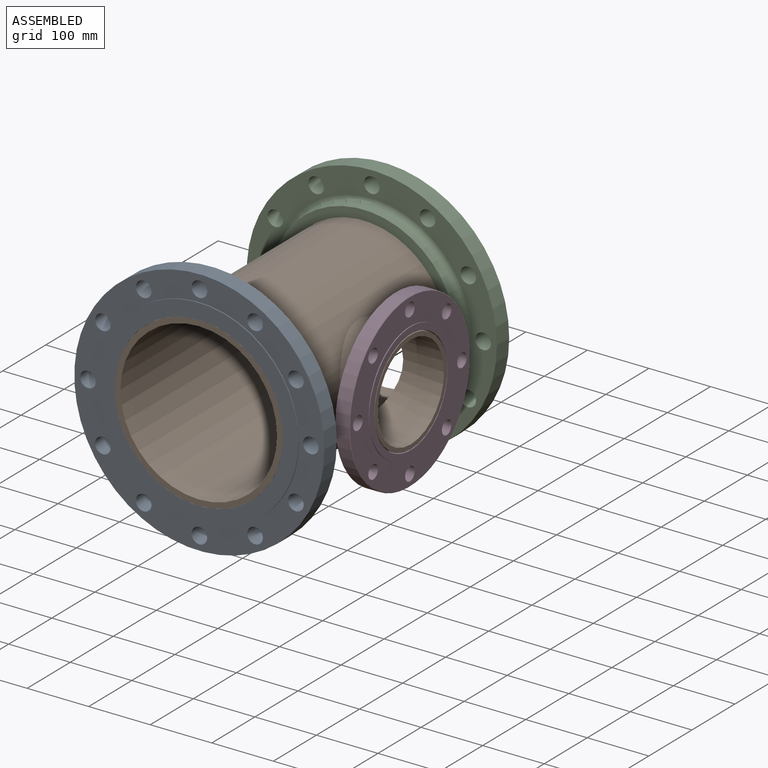
[diagram: assembled view]
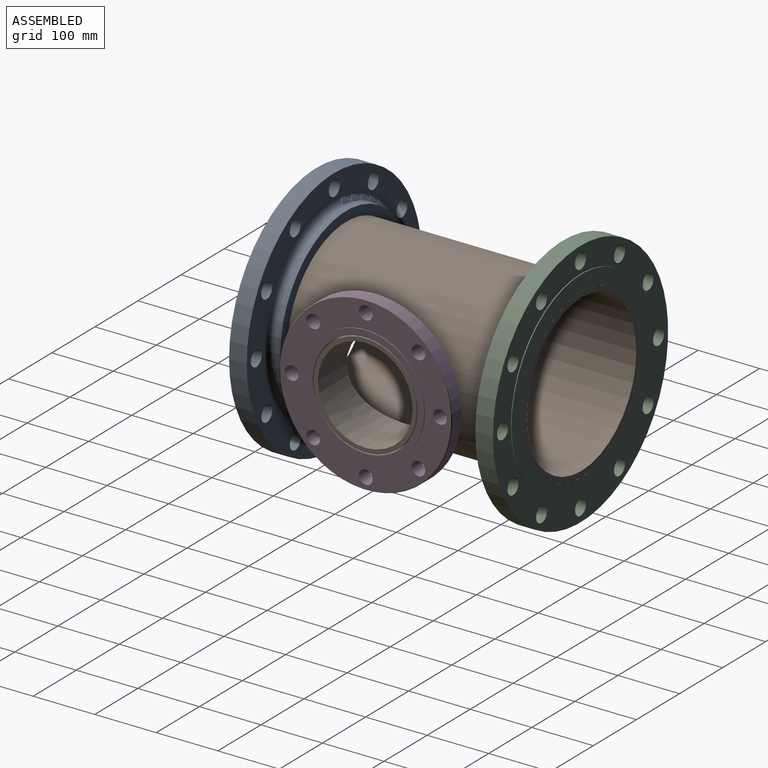
[diagram: assembled view, second angle]
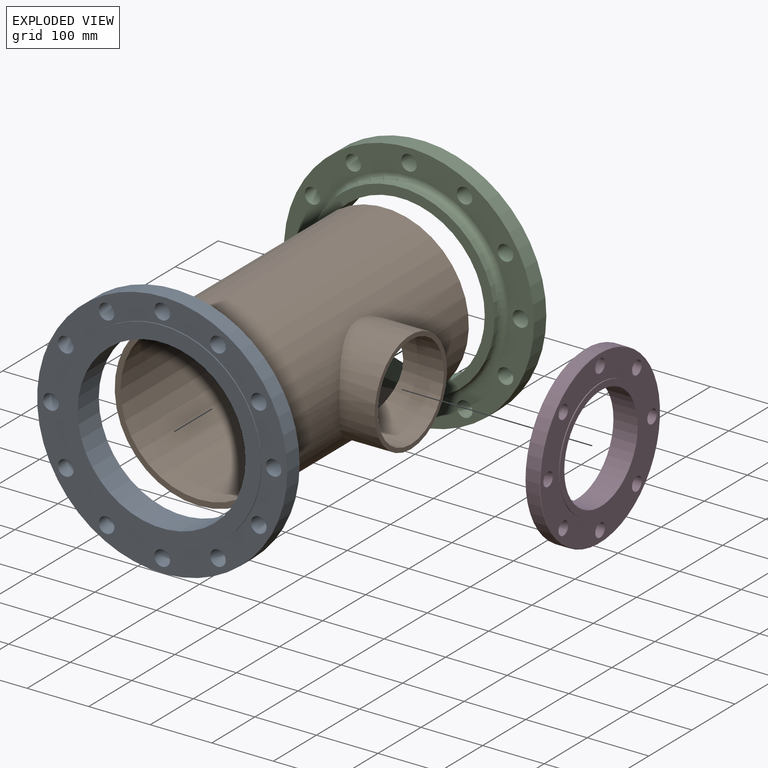
[diagram: exploded view]
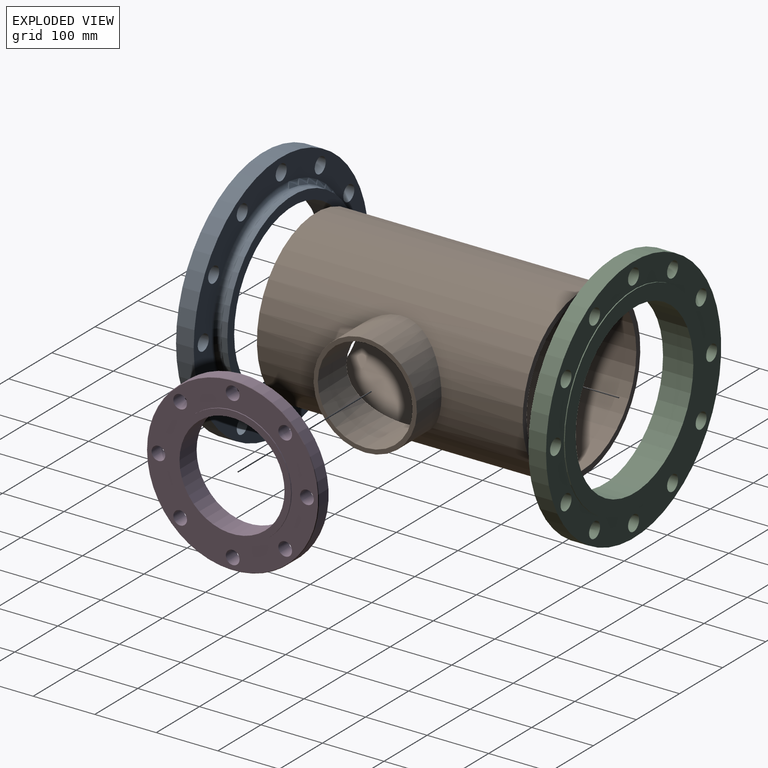
[diagram: exploded view, second angle]
ASSEMBLY  parts=4 mates=3
PART A: 21 faces, bbox 406.4x49.3x406.4 mm
  f0: plane 304.8x304.8mm, normal (0,-1,0), area 14409.5mm2, adj f1,f7
  f1: cylinder r=136.53mm len=273.05mm, axis (0,-1,0), area 42269.5mm2, adj f0,f2
  f2: plane 323.85x323.85mm, normal (0,1,0), area 23815.3mm2, adj f1,f3
  f3: cylinder r=161.93mm len=323.85mm, axis (0,-1,0), area 1550.5mm2, adj f2,f4
  f4: plane 406.4x406.4mm, normal (0,1,0), area 41265mm2, adj f3,f5,f8,f9,f10,f11,f12,f13
  f5: cylinder r=203.2mm len=406.4mm, axis (0,-1,0), area 36645.1mm2, adj f4,f6
  f6: plane 406.4x406.4mm, normal (0,-1,0), area 41265mm2, adj f5,f8,f9,f10,f11,f12,f13,f14
  f7: cylinder r=152.4mm len=304.8mm, axis (0,-1,0), area 9120.7mm2, adj f0,f20
  f8: cylinder r=12.7mm len=28.7mm, axis (0,-1,0), area 2290.3mm2, adj f4,f6
  f9: cylinder r=12.7mm len=28.7mm, axis (0,-1,0), area 2290.3mm2, adj f4,f6
  f10: cylinder r=12.7mm len=28.7mm, axis (0,-1,0), area 2290.3mm2, adj f4,f6
  f11: cylinder r=12.7mm len=28.7mm, axis (0,-1,0), area 2290.3mm2, adj f4,f6
  f12: cylinder r=12.7mm len=28.7mm, axis (0,-1,0), area 2290.3mm2, adj f4,f6
  f13: cylinder r=12.7mm len=28.7mm, axis (0,-1,0), area 2290.3mm2, adj f4,f6
  f14: cylinder r=12.7mm len=28.7mm, axis (0,-1,0), area 2290.3mm2, adj f4,f6
  f15: cylinder r=12.7mm len=28.7mm, axis (0,-1,0), area 2290.3mm2, adj f4,f6
  f16: cylinder r=12.7mm len=28.7mm, axis (0,-1,0), area 2290.3mm2, adj f4,f6
  f17: cylinder r=12.7mm len=28.7mm, axis (0,-1,0), area 2290.3mm2, adj f4,f6
  f18: cylinder r=12.7mm len=28.7mm, axis (0,-1,0), area 2290.3mm2, adj f4,f6
  f19: cylinder r=12.7mm len=28.7mm, axis (0,-1,0), area 2290.3mm2, adj f4,f6
  f20: torus R=161.93mm, axis (0,1,0), area 14652.2mm2, adj f6,f7
PART B: 7 faces, bbox 330.1x431.8x273.1 mm
  f0: cylinder r=127.25mm len=431.8mm, axis (0,1,0), area 325674.2mm2, adj f2,f3,f6
  f1: cylinder r=136.53mm len=431.8mm, axis (0,1,0), area 347020.1mm2, adj f2,f3,f5
  f2: plane 273.05x273.05mm, normal (0,-1,0), area 7682.7mm2, adj f0,f1
  f3: plane 273.05x273.05mm, normal (0,1,0), area 7682.7mm2, adj f0,f1
  f4: plane 168.15x168.15mm, normal (1,0,0), area 3567.3mm2, adj f5,f6
  f5: cylinder r=84.07mm len=168.15mm, axis (1,0,0), area 37536.7mm2, adj f1,f4
  f6: cylinder r=77.03mm len=154.05mm, axis (1,0,0), area 38202.8mm2, adj f0,f4
PART C: same geometry as A
PART D: 18 faces, bbox 279.4x39.6x279.4 mm
  f0: plane 277.88x277.88mm, normal (0,1,0), area 28580.8mm2, adj f7,f8,f9,f10,f11,f12,f13,f14
  f1: cylinder r=96.01mm len=192.02mm, axis (0,-1,0), area 919.4mm2, adj f2,f4
  f2: plane 192.02x192.02mm, normal (0,-1,0), area 6078.1mm2, adj f1,f3
  f3: cylinder r=85.34mm len=170.69mm, axis (0,-1,0), area 21247.7mm2, adj f2,f6
  f4: plane 277.88x277.88mm, normal (0,-1,0), area 28580.8mm2, adj f1,f8,f9,f10,f11,f12,f13,f14
  f5: cylinder r=139.7mm len=279.4mm, axis (0,-1,0), area 19619.7mm2, adj f16,f17
  f6: plane 192.02x192.02mm, normal (0,1,0), area 6078.1mm2, adj f3,f7
  f7: cylinder r=96.01mm len=192.02mm, axis (0,-1,0), area 8580.8mm2, adj f0,f6
  f8: cylinder r=11.11mm len=23.88mm, axis (0,1,0), area 1667.1mm2, adj f0,f4
  f9: cylinder r=11.11mm len=23.88mm, axis (0,1,0), area 1667.1mm2, adj f0,f4
  f10: cylinder r=11.11mm len=23.88mm, axis (0,1,0), area 1667.1mm2, adj f0,f4
  f11: cylinder r=11.11mm len=23.88mm, axis (0,1,0), area 1667.1mm2, adj f0,f4
  f12: cylinder r=11.11mm len=23.88mm, axis (0,1,0), area 1667.1mm2, adj f0,f4
  f13: cylinder r=11.11mm len=23.88mm, axis (0,1,0), area 1667.1mm2, adj f0,f4
  f14: cylinder r=11.11mm len=23.88mm, axis (0,1,0), area 1667.1mm2, adj f0,f4
  f15: cylinder r=11.11mm len=23.88mm, axis (0,1,0), area 1667.1mm2, adj f0,f4
  f16: cone r=139.7mm half-angle=45deg, axis (0,1,0), area 943.3mm2, adj f4,f5
  f17: cone r=138.94mm half-angle=45deg, axis (0,-1,0), area 943.3mm2, adj f0,f5
PLACE A rot(axis=(-1,0,0),180deg) t=(152.65,15.07,-44.63)mm
PLACE B rot(axis=(1,0,0),0deg) t=(152.65,181.69,-44.63)mm
PLACE C rot(axis=(-1,0,0),0deg) t=(152.65,348.31,-44.63)mm
PLACE D rot(axis=(0,0,1),90deg) t=(346.2,181.69,-44.63)mm
MATE fastened B.f5 <-> D.f1  axis (1,0,0) through (346.2,181.69,-44.63)mm
MATE fastened B.f1 <-> C.f1  axis (0,1,0) through (152.65,397.59,-44.63)mm
MATE fastened B.f1 <-> A.f1  axis (0,-1,0) through (152.65,-34.21,-44.63)mm
